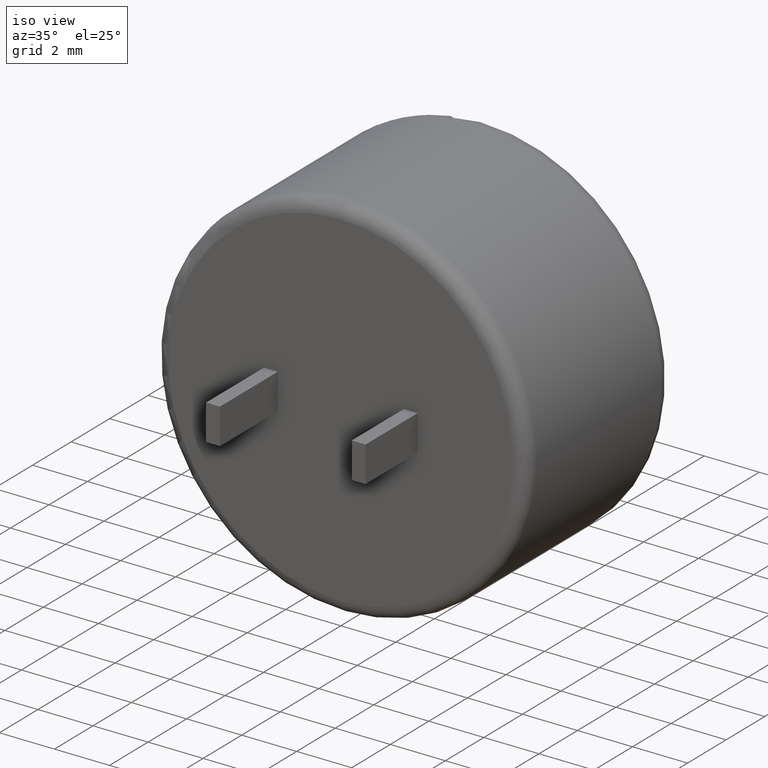
[diagram: clean part render]
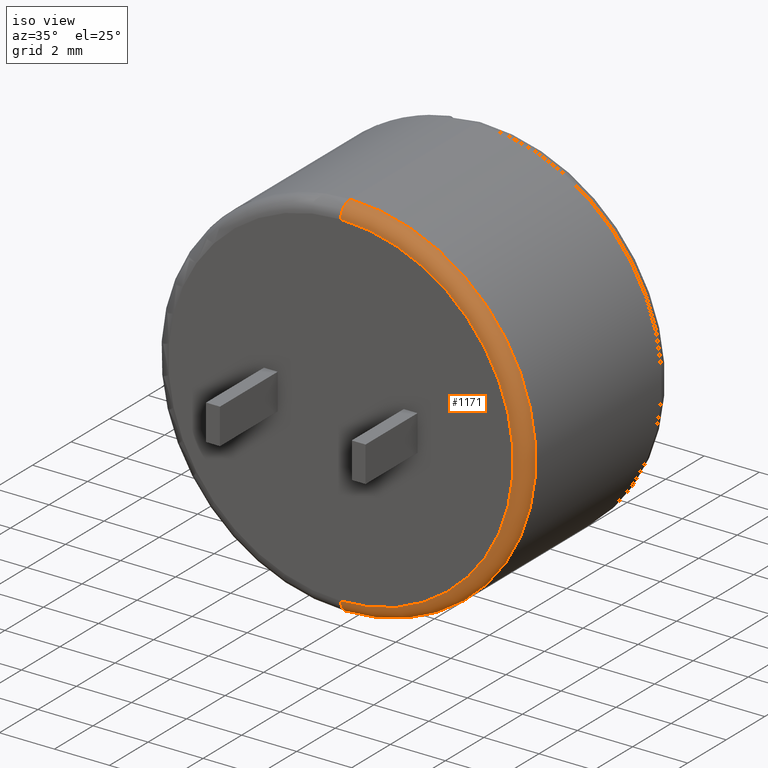
[diagram: same view with one face highlighted and labeled with its STEP entity id]
A machine part, iso view. The second image highlights one B-rep face of the part: STEP entity #1171.
In plain terms, the highlighted toroidal blend (fillet) surface has major radius 6.2663 mm and minor (blend) radius 0.4838 mm.
Its self-contained STEP definition (entity closure, byte-faithful):
#379 = DIRECTION ( 'NONE',  ( 0.0000000000000000000, 1.000000000000000000, 0.0000000000000000000 ) ) ;
#464 = ORIENTED_EDGE ( 'NONE', *, *, #608, .F. ) ;
#502 = DIRECTION ( 'NONE',  ( 1.224646799147353700E-016, 0.0000000000000000000, -1.000000000000000000 ) ) ;
#544 = DIRECTION ( 'NONE',  ( 0.0000000000000000000, 1.000000000000000000, 0.0000000000000000000 ) ) ;
#576 = EDGE_CURVE ( 'NONE', #2037, #967, #887, .T. ) ;
#598 = AXIS2_PLACEMENT_3D ( 'NONE', #1469, #2086, #2075 ) ;
#606 = ORIENTED_EDGE ( 'NONE', *, *, #1953, .T. ) ;
#608 = EDGE_CURVE ( 'NONE', #967, #1884, #1832, .T. ) ;
#681 = CARTESIAN_POINT ( 'NONE',  ( 7.673943005157101700E-016, 0.4837499999999997900, -6.266250000000000300 ) ) ;
#704 = DIRECTION ( 'NONE',  ( 0.0000000000000000000, 0.0000000000000000000, 1.000000000000000000 ) ) ;
#706 = AXIS2_PLACEMENT_3D ( 'NONE', #2663, #544, #1188 ) ;
#813 = VERTEX_POINT ( 'NONE', #2535 ) ;
#865 = CARTESIAN_POINT ( 'NONE',  ( 0.0000000000000000000, 0.4837499999999997900, -6.750000000000000000 ) ) ;
#887 = CIRCLE ( 'NONE', #1416, 0.4837499999999997900 ) ;
#967 = VERTEX_POINT ( 'NONE', #1136 ) ;
#1064 = CIRCLE ( 'NONE', #598, 6.266250000000000300 ) ;
#1136 = CARTESIAN_POINT ( 'NONE',  ( 8.266365894244634300E-016, 0.4837499999999997900, 6.750000000000000000 ) ) ;
#1171 = ADVANCED_FACE ( 'NONE', ( #1930 ), #2534, .T. ) ;
#1188 = DIRECTION ( 'NONE',  ( 0.0000000000000000000, 0.0000000000000000000, 1.000000000000000000 ) ) ;
#1327 = DIRECTION ( 'NONE',  ( -1.000000000000000000, 0.0000000000000000000, 0.0000000000000000000 ) ) ;
#1416 = AXIS2_PLACEMENT_3D ( 'NONE', #2607, #1327, #704 ) ;
#1469 = CARTESIAN_POINT ( 'NONE',  ( 0.0000000000000000000, 0.0000000000000000000, 0.0000000000000000000 ) ) ;
#1508 = EDGE_LOOP ( 'NONE', ( #2632, #606, #464, #1915 ) ) ;
#1513 = CIRCLE ( 'NONE', #2176, 0.4837499999999997900 ) ;
#1745 = AXIS2_PLACEMENT_3D ( 'NONE', #2684, #379, #2693 ) ;
#1832 = CIRCLE ( 'NONE', #1745, 6.750000000000000000 ) ;
#1884 = VERTEX_POINT ( 'NONE', #865 ) ;
#1915 = ORIENTED_EDGE ( 'NONE', *, *, #576, .F. ) ;
#1930 = FACE_OUTER_BOUND ( 'NONE', #1508, .T. ) ;
#1953 = EDGE_CURVE ( 'NONE', #813, #1884, #1513, .T. ) ;
#2037 = VERTEX_POINT ( 'NONE', #2187 ) ;
#2075 = DIRECTION ( 'NONE',  ( 0.0000000000000000000, 0.0000000000000000000, 1.000000000000000000 ) ) ;
#2086 = DIRECTION ( 'NONE',  ( -0.0000000000000000000, -1.000000000000000000, -0.0000000000000000000 ) ) ;
#2138 = DIRECTION ( 'NONE',  ( 1.000000000000000000, -0.0000000000000000000, 1.224646799147353200E-016 ) ) ;
#2176 = AXIS2_PLACEMENT_3D ( 'NONE', #681, #2138, #502 ) ;
#2187 = CARTESIAN_POINT ( 'NONE',  ( 0.0000000000000000000, 0.0000000000000000000, 6.266250000000000300 ) ) ;
#2326 = EDGE_CURVE ( 'NONE', #813, #2037, #1064, .T. ) ;
#2534 = TOROIDAL_SURFACE ( 'NONE', #706, 6.266250000000000300, 0.4837500000000000100 ) ;
#2535 = CARTESIAN_POINT ( 'NONE',  ( 7.970154449700868000E-016, 0.0000000000000000000, -6.266250000000000300 ) ) ;
#2607 = CARTESIAN_POINT ( 'NONE',  ( 0.0000000000000000000, 0.4837499999999997900, 6.266250000000000300 ) ) ;
#2632 = ORIENTED_EDGE ( 'NONE', *, *, #2326, .F. ) ;
#2663 = CARTESIAN_POINT ( 'NONE',  ( 0.0000000000000000000, 0.4837499999999997900, 0.0000000000000000000 ) ) ;
#2684 = CARTESIAN_POINT ( 'NONE',  ( 0.0000000000000000000, 0.4837499999999997900, 0.0000000000000000000 ) ) ;
#2693 = DIRECTION ( 'NONE',  ( 0.0000000000000000000, 0.0000000000000000000, 1.000000000000000000 ) ) ;